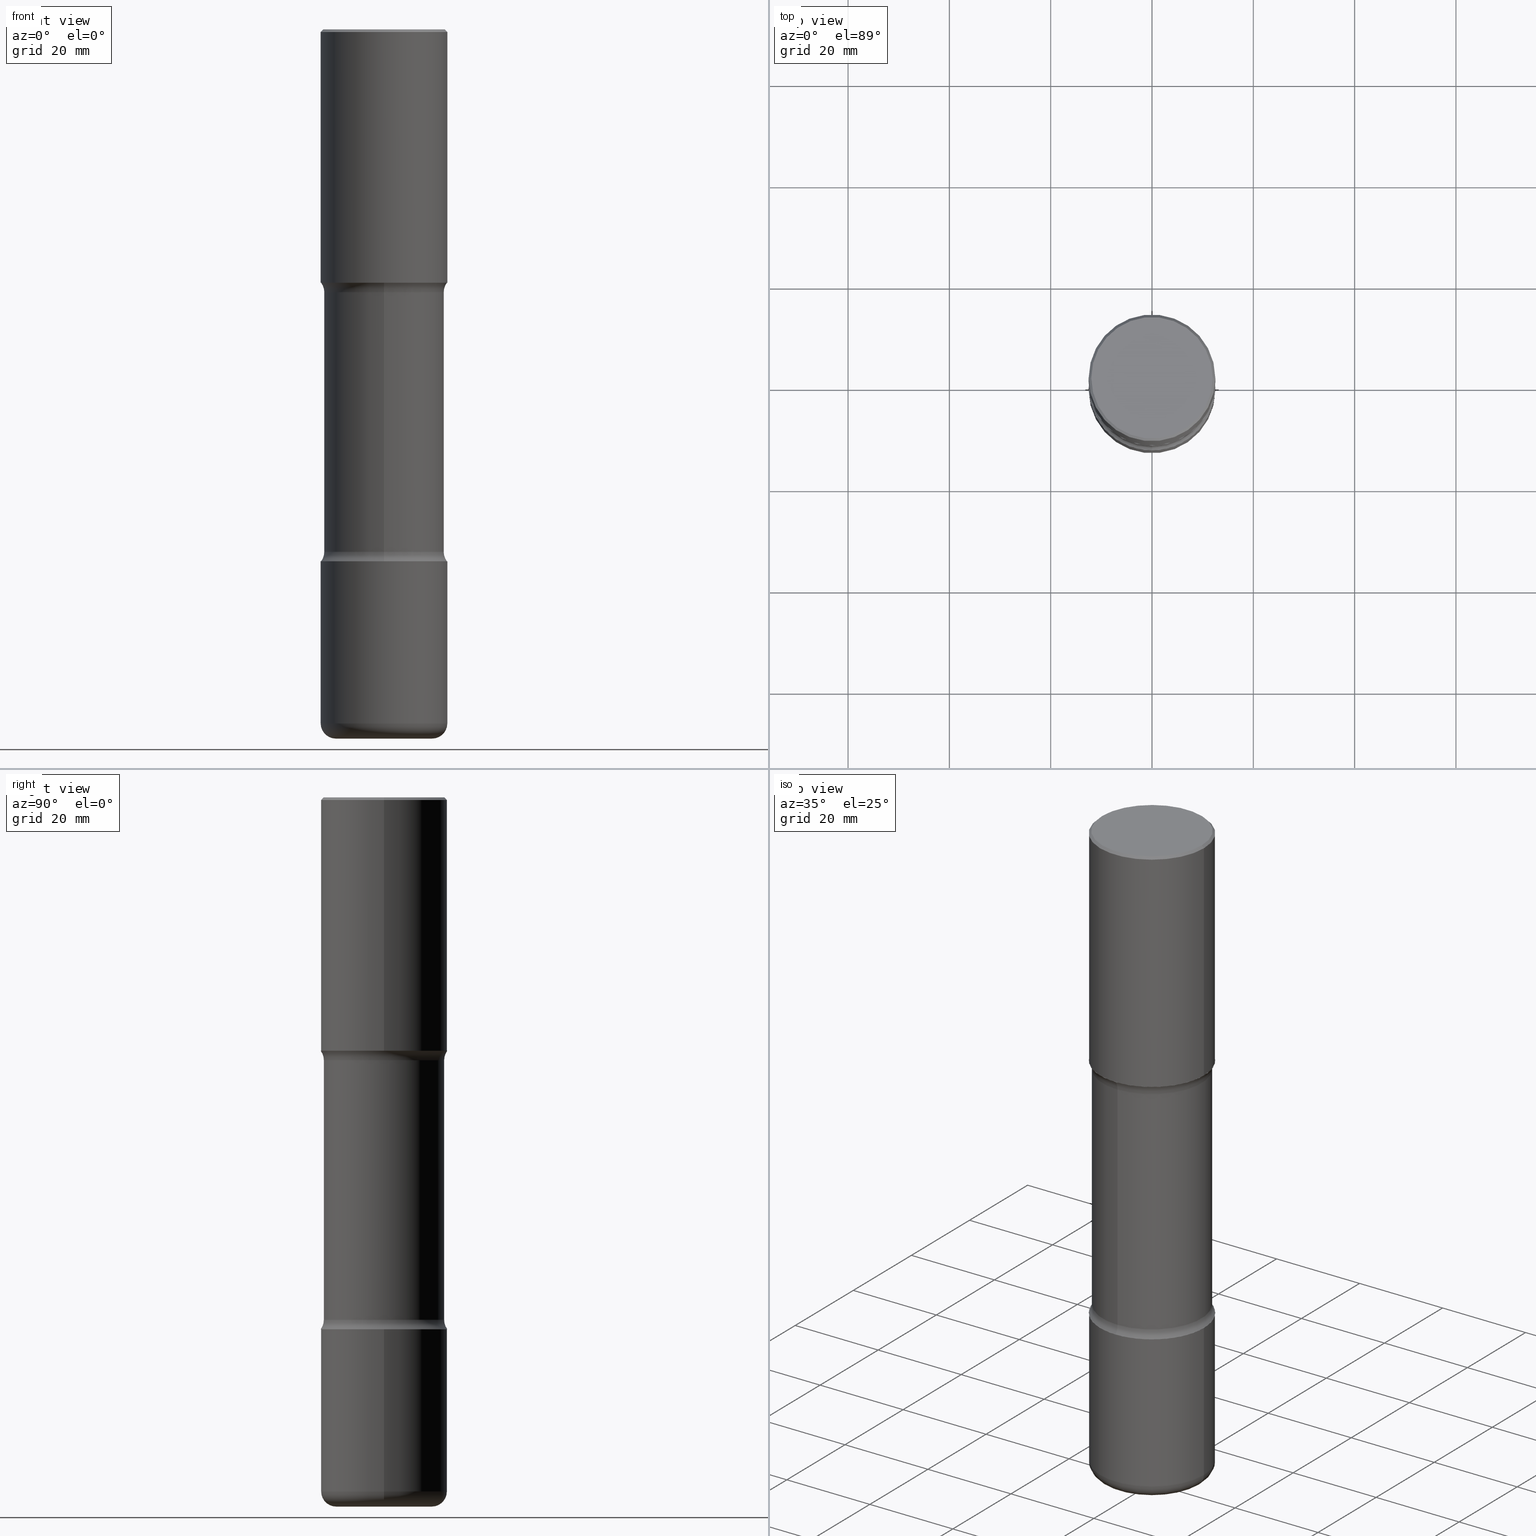
[diagram: canonical four-view strip — front | top / right | iso, engineering-drawing reading convention]
A machine part, canonical four-view strip (front | top / right | iso — engineering-drawing reading convention). The complete STEP part file that produces these views, byte-faithful:
ISO-10303-21;
HEADER;
FILE_DESCRIPTION (( 'STEP AP203' ),
    '1' );
FILE_NAME ('45004.STEP',
    '2024-03-02T04:33:52',
    ( '' ),
    ( '' ),
    'SwSTEP 2.0',
    'SolidWorks 2023',
    '' );
FILE_SCHEMA (( 'CONFIG_CONTROL_DESIGN' ));
ENDSEC;

DATA;
#1 = ORIENTED_EDGE ( 'NONE', *, *, #400, .F. ) ;
#2 = PERSON_AND_ORGANIZATION ( #340, #30 ) ;
#3 = CC_DESIGN_APPROVAL ( #273, ( #264 ) ) ;
#4 = COORDINATED_UNIVERSAL_TIME_OFFSET ( 5, 0, .BEHIND. ) ;
#5 = TOROIDAL_SURFACE ( 'NONE', #440, 0.5925000000000001377, 0.1250000000000001943 ) ;
#6 = EDGE_LOOP ( 'NONE', ( #391, #255, #208, #361 ) ) ;
#7 = PRODUCT_DEFINITION_FORMATION_WITH_SPECIFIED_SOURCE ( 'ANY', '', #63, .NOT_KNOWN. ) ;
#8 = EDGE_CURVE ( 'NONE', #421, #312, #518, .T. ) ;
#9 = PERSON_AND_ORGANIZATION ( #340, #30 ) ;
#10 = PERSON_AND_ORGANIZATION_ROLE ( 'classification_officer' ) ;
#11 = MECHANICAL_CONTEXT ( 'NONE', #149, 'mechanical' ) ;
#12 = DIRECTION ( 'NONE',  ( 1.000000000000000000, -6.982962677686265922E-15, 4.876176775795935793E-29 ) ) ;
#13 = EDGE_CURVE ( 'NONE', #345, #197, #22, .T. ) ;
#14 = CLOSED_SHELL ( 'NONE', ( #46, #87, #432, #551, #144, #323 ) ) ;
#15 = AXIS2_PLACEMENT_3D ( 'NONE', #277, #397, #453 ) ;
#16 = DIRECTION ( 'NONE',  ( 1.000000000000000000, -6.982962677686266711E-15, 4.876176775795935793E-29 ) ) ;
#17 = CARTESIAN_POINT ( 'NONE',  ( 3.436665081823346264E-15, 0.4921499999999935371, -1.968500000000001249 ) ) ;
#18 = CYLINDRICAL_SURFACE ( 'NONE', #441, 0.4921500000000002539 ) ;
#19 = ADVANCED_FACE ( 'NONE', ( #457 ), #338, .F. ) ;
#20 = ORIENTED_EDGE ( 'NONE', *, *, #299, .F. ) ;
#21 = CARTESIAN_POINT ( 'NONE',  ( -0.4921500000000000874, 3.366835455046433267E-15, -0.02000000000000010103 ) ) ;
#22 = CIRCLE ( 'NONE', #486, 0.1250000000000001665 ) ;
#23 = AXIS2_PLACEMENT_3D ( 'NONE', #549, #325, #70 ) ;
#24 = CARTESIAN_POINT ( 'NONE',  ( 1.347893496593123646E-28, -1.924434684343564878E-14, -5.511800000000000033 ) ) ;
#25 = CARTESIAN_POINT ( 'NONE',  ( 0.4921500000000001984, -1.786975064033309297E-14, -4.133799999999999919 ) ) ;
#26 = DIRECTION ( 'NONE',  ( 6.982962677686265133E-15, 1.000000000000000000, -3.392357681598433540E-15 ) ) ;
#27 = CARTESIAN_POINT ( 'NONE',  ( 9.921656725330168688E-29, -1.418024957656984198E-14, -4.059268949423747053 ) ) ;
#28 = CC_DESIGN_PERSON_AND_ORGANIZATION_ASSIGNMENT ( #346, #44, ( #63 ) ) ;
#29 = EDGE_LOOP ( 'NONE', ( #128, #465 ) ) ;
#30 = ORGANIZATION ( 'UNSPECIFIED', 'UNSPECIFIED', '' ) ;
#31 = DIRECTION ( 'NONE',  ( 6.982962677686265133E-15, 1.000000000000000000, -3.392357681598433540E-15 ) ) ;
#32 = VERTEX_POINT ( 'NONE', #199 ) ;
#33 = FACE_OUTER_BOUND ( 'NONE', #399, .T. ) ;
#34 = ADVANCED_FACE ( 'NONE', ( #545 ), #237, .F. ) ;
#35 = FACE_OUTER_BOUND ( 'NONE', #498, .T. ) ;
#36 = DIRECTION ( 'NONE',  ( 6.982962677686265133E-15, 1.000000000000000000, -3.392357681598433540E-15 ) ) ;
#37 = CIRCLE ( 'NONE', #443, 0.4675000000000001377 ) ;
#38 = CARTESIAN_POINT ( 'NONE',  ( -2.087702828670439639E-46, 2.980686340760894400E-32, 8.537024980200822558E-18 ) ) ;
#39 = AXIS2_PLACEMENT_3D ( 'NONE', #554, #425, #117 ) ;
#40 = PERSON_AND_ORGANIZATION ( #340, #30 ) ;
#41 = ORIENTED_EDGE ( 'NONE', *, *, #559, .T. ) ;
#42 = ADVANCED_FACE ( 'NONE', ( #319 ), #101, .F. ) ;
#43 = ORIENTED_EDGE ( 'NONE', *, *, #235, .T. ) ;
#44 = PERSON_AND_ORGANIZATION_ROLE ( 'design_owner' ) ;
#45 = PLANE ( 'NONE',  #395 ) ;
#46 = ADVANCED_FACE ( 'NONE', ( #483 ), #98, .T. ) ;
#47 = SECURITY_CLASSIFICATION_LEVEL ( 'unclassified' ) ;
#48 = CARTESIAN_POINT ( 'NONE',  ( 4.890937612370298557E-31, -6.982962677686327354E-17, -0.02000000000000010103 ) ) ;
#49 = FACE_OUTER_BOUND ( 'NONE', #478, .T. ) ;
#50 = AXIS2_PLACEMENT_3D ( 'NONE', #54, #393, #12 ) ;
#51 = CIRCLE ( 'NONE', #369, 0.4921500000000000874 ) ;
#52 = COORDINATED_UNIVERSAL_TIME_OFFSET ( 5, 0, .BEHIND. ) ;
#53 = EDGE_CURVE ( 'NONE', #344, #231, #558, .T. ) ;
#54 = CARTESIAN_POINT ( 'NONE',  ( 0.000000000000000000, 0.000000000000000000, 0.000000000000000000 ) ) ;
#55 = ORIENTED_EDGE ( 'NONE', *, *, #315, .F. ) ;
#56 = CYLINDRICAL_SURFACE ( 'NONE', #238, 0.4921500000000002539 ) ;
#57 = AXIS2_PLACEMENT_3D ( 'NONE', #280, #449, #362 ) ;
#58 = TOROIDAL_SURFACE ( 'NONE', #75, 0.5925000000000002487, 0.1250000000000001388 ) ;
#59 = DIRECTION ( 'NONE',  ( -2.445468806185136597E-29, 3.491481338843145583E-15, 1.000000000000000000 ) ) ;
#60 = CARTESIAN_POINT ( 'NONE',  ( -0.3740500000000001601, -1.617421779420761837E-14, -5.393699999999999939 ) ) ;
#61 = CARTESIAN_POINT ( 'NONE',  ( 4.813905344975440153E-29, -6.872981015512730130E-15, -1.968499999999999472 ) ) ;
#62 = CC_DESIGN_PERSON_AND_ORGANIZATION_ASSIGNMENT ( #9, #294, ( #264 ) ) ;
#63 = PRODUCT ( '45004', '45004', '', ( #11 ) ) ;
#64 = DIRECTION ( 'NONE',  ( 2.514686486086695474E-29, -3.392357681598433540E-15, -1.000000000000000000 ) ) ;
#65 = AXIS2_PLACEMENT_3D ( 'NONE', #360, #540, #309 ) ;
#66 = LOCAL_TIME ( 23, 33, 52.00000000000000000, #52 ) ;
#67 = DIRECTION ( 'NONE',  ( -2.445468806185136877E-29, 3.491481338843145188E-15, 1.000000000000000000 ) ) ;
#68 = ORIENTED_EDGE ( 'NONE', *, *, #245, .F. ) ;
#69 = CARTESIAN_POINT ( 'NONE',  ( 0.3740500000000000491, -2.185632403302419787E-14, -5.511800000000000033 ) ) ;
#70 = DIRECTION ( 'NONE',  ( 1.000000000000000000, -6.982962677686267499E-15, 0.000000000000000000 ) ) ;
#71 = DIMENSIONAL_EXPONENTS ( 1.000000000000000000, 0.000000000000000000, 0.000000000000000000, 0.000000000000000000, 0.000000000000000000, 0.000000000000000000, 0.000000000000000000 ) ;
#72 = DIRECTION ( 'NONE',  ( 2.445468806185136597E-29, -3.491481338843145583E-15, -1.000000000000000000 ) ) ;
#73 = LOCAL_TIME ( 23, 33, 52.00000000000000000, #4 ) ;
#74 = AXIS2_PLACEMENT_3D ( 'NONE', #454, #241, #36 ) ;
#75 = AXIS2_PLACEMENT_3D ( 'NONE', #485, #64, #31 ) ;
#76 = DIRECTION ( 'NONE',  ( 2.514686486086695474E-29, -3.392357681598433540E-15, -1.000000000000000000 ) ) ;
#77 = CC_DESIGN_PERSON_AND_ORGANIZATION_ASSIGNMENT ( #2, #174, ( #7 ) ) ;
#78 = CARTESIAN_POINT ( 'NONE',  ( 4.813905344975440153E-29, -6.872981015512730130E-15, -1.968499999999999472 ) ) ;
#79 = FACE_OUTER_BOUND ( 'NONE', #522, .T. ) ;
#80 = DIRECTION ( 'NONE',  ( 2.514686486086695474E-29, -3.392357681598433540E-15, -1.000000000000000000 ) ) ;
#81 = CARTESIAN_POINT ( 'NONE',  ( 1.010907895100811684E-28, -1.443308555850979562E-14, -4.133799999999999919 ) ) ;
#82 = ORIENTED_EDGE ( 'NONE', *, *, #165, .F. ) ;
#83 = APPROVAL_DATE_TIME ( #380, #512 ) ;
#84 = CIRCLE ( 'NONE', #247, 0.4674999999999999156 ) ;
#85 = VERTEX_POINT ( 'NONE', #206 ) ;
#86 = APPROVAL_STATUS ( 'not_yet_approved' ) ;
#87 = ADVANCED_FACE ( 'NONE', ( #374 ), #279, .T. ) ;
#88 = CARTESIAN_POINT ( 'NONE',  ( 4.813905344975440153E-29, -6.872981015512730130E-15, -1.968499999999999472 ) ) ;
#89 = ORIENTED_EDGE ( 'NONE', *, *, #400, .T. ) ;
#90 = DIRECTION ( 'NONE',  ( 6.982962677686265922E-15, 1.000000000000000000, -3.506115072082476004E-15 ) ) ;
#91 = APPROVAL_DATE_TIME ( #479, #475 ) ;
#92 = DIRECTION ( 'NONE',  ( -2.514686486086694914E-29, 3.392357681598433935E-15, 1.000000000000000000 ) ) ;
#93 = AXIS2_PLACEMENT_3D ( 'NONE', #24, #59, #198 ) ;
#94 = ORIENTED_EDGE ( 'NONE', *, *, #53, .F. ) ;
#95 = VECTOR ( 'NONE', #207, 39.37007874015748143 ) ;
#96 = EDGE_CURVE ( 'NONE', #344, #345, #37, .T. ) ;
#97 = CALENDAR_DATE ( 2024, 1, 3 ) ;
#98 = CYLINDRICAL_SURFACE ( 'NONE', #50, 0.4921500000000000874 ) ;
#99 = EDGE_LOOP ( 'NONE', ( #136, #476, #520, #433 ) ) ;
#100 = EDGE_CURVE ( 'NONE', #516, #354, #185, .T. ) ;
#101 = PLANE ( 'NONE',  #527 ) ;
#102 = DIRECTION ( 'NONE',  ( -2.445468806185136597E-29, 3.491481338843145583E-15, 1.000000000000000000 ) ) ;
#103 = AXIS2_PLACEMENT_3D ( 'NONE', #48, #437, #161 ) ;
#104 = AXIS2_PLACEMENT_3D ( 'NONE', #81, #417, #254 ) ;
#105 = FACE_OUTER_BOUND ( 'NONE', #109, .T. ) ;
#106 = DIRECTION ( 'NONE',  ( 1.000000000000000000, -6.982962677686266711E-15, 4.876176775795935793E-29 ) ) ;
#107 = ADVANCED_FACE ( 'NONE', ( #281 ), #386, .T. ) ;
#108 = PRODUCT_DEFINITION_SHAPE ( 'NONE', 'NONE',  #264 ) ;
#109 = EDGE_LOOP ( 'NONE', ( #553, #303, #110, #1 ) ) ;
#110 = ORIENTED_EDGE ( 'NONE', *, *, #451, .F. ) ;
#111 = CARTESIAN_POINT ( 'NONE',  ( 0.4921500000000000874, -3.446223716380123532E-15, -0.02000000000000010103 ) ) ;
#112 = ORIENTED_EDGE ( 'NONE', *, *, #220, .F. ) ;
#113 = FACE_OUTER_BOUND ( 'NONE', #29, .T. ) ;
#114 = DIRECTION ( 'NONE',  ( -2.445468806185136877E-29, 3.491481338843145188E-15, 1.000000000000000000 ) ) ;
#115 = AXIS2_PLACEMENT_3D ( 'NONE', #250, #370, #552 ) ;
#116 = EDGE_CURVE ( 'NONE', #345, #344, #418, .T. ) ;
#117 = DIRECTION ( 'NONE',  ( 1.000000000000000000, -6.982962677686264344E-15, 4.883557194083111780E-29 ) ) ;
#118 = CARTESIAN_POINT ( 'NONE',  ( -3.376394089603158865E-15, -0.4921500000000145758, -4.133799999999998143 ) ) ;
#119 = DIRECTION ( 'NONE',  ( -1.000000000000000000, 6.982962677686265922E-15, 0.000000000000000000 ) ) ;
#120 = DIRECTION ( 'NONE',  ( 2.514686486086695194E-29, -3.392357681598433935E-15, -1.000000000000000000 ) ) ;
#121 = CIRCLE ( 'NONE', #266, 0.4921500000000005870 ) ;
#122 = AXIS2_PLACEMENT_3D ( 'NONE', #150, #271, #318 ) ;
#123 = DIRECTION ( 'NONE',  ( -2.438088387897960049E-29, 3.491481338843145188E-15, 1.000000000000000000 ) ) ;
#124 = DIRECTION ( 'NONE',  ( -2.445468806185136597E-29, 3.491481338843145583E-15, 1.000000000000000000 ) ) ;
#125 = DIRECTION ( 'NONE',  ( -2.445468806185136597E-29, 3.491481338843145583E-15, 1.000000000000000000 ) ) ;
#126 = CARTESIAN_POINT ( 'NONE',  ( 4.813905344975440153E-29, -6.872981015512730130E-15, -1.968499999999999472 ) ) ;
#127 = EDGE_LOOP ( 'NONE', ( #248, #260, #337, #535 ) ) ;
#128 = ORIENTED_EDGE ( 'NONE', *, *, #341, .T. ) ;
#129 = EDGE_CURVE ( 'NONE', #493, #435, #139, .T. ) ;
#130 = DIRECTION ( 'NONE',  ( 0.000000000000000000, 0.000000000000000000, 1.000000000000000000 ) ) ;
#131 = APPROVAL_PERSON_ORGANIZATION ( #262, #273, #183 ) ;
#132 = ORIENTED_EDGE ( 'NONE', *, *, #355, .F. ) ;
#133 = PERSON_AND_ORGANIZATION ( #340, #30 ) ;
#134 = DATE_AND_TIME ( #383, #140 ) ;
#135 = DIRECTION ( 'NONE',  ( -2.445468806185136877E-29, 3.491481338843145188E-15, 1.000000000000000000 ) ) ;
#136 = ORIENTED_EDGE ( 'NONE', *, *, #327, .F. ) ;
#137 = APPLICATION_PROTOCOL_DEFINITION ( 'international standard', 'config_control_design', 1994, #149 ) ;
#138 = DIRECTION ( 'NONE',  ( -2.445468806185136597E-29, 3.491481338843145583E-15, 1.000000000000000000 ) ) ;
#139 = CIRCLE ( 'NONE', #452, 0.1180999999999999689 ) ;
#140 = LOCAL_TIME ( 23, 33, 52.00000000000000000, #216 ) ;
#141 = ORIENTED_EDGE ( 'NONE', *, *, #165, .T. ) ;
#142 = FACE_OUTER_BOUND ( 'NONE', #6, .T. ) ;
#143 = EDGE_LOOP ( 'NONE', ( #342, #146, #494, #209 ) ) ;
#144 = ADVANCED_FACE ( 'NONE', ( #371 ), #365, .T. ) ;
#145 = DIRECTION ( 'NONE',  ( 6.982962677686266711E-15, 1.000000000000000000, -3.330506545156064679E-15 ) ) ;
#146 = ORIENTED_EDGE ( 'NONE', *, *, #532, .F. ) ;
#147 = AXIS2_PLACEMENT_3D ( 'NONE', #531, #226, #186 ) ;
#148 = LOCAL_TIME ( 23, 33, 52.00000000000000000, #474 ) ;
#149 = APPLICATION_CONTEXT ( 'configuration controlled 3d designs of mechanical parts and assemblies' ) ;
#150 = CARTESIAN_POINT ( 'NONE',  ( 1.010907895100811684E-28, -1.443308555850979562E-14, -4.133799999999999919 ) ) ;
#151 = DIRECTION ( 'NONE',  ( 1.000000000000000000, -6.982962677686264344E-15, 0.000000000000000000 ) ) ;
#152 = CARTESIAN_POINT ( 'NONE',  ( -4.064845063679533496E-15, -0.5925000000000143485, -4.059268949423744388 ) ) ;
#153 = CC_DESIGN_DATE_AND_TIME_ASSIGNMENT ( #482, #302, ( #264 ) ) ;
#154 = FACE_OUTER_BOUND ( 'NONE', #127, .T. ) ;
#155 = VERTEX_POINT ( 'NONE', #414 ) ;
#156 = DIRECTION ( 'NONE',  ( -2.445468806185136597E-29, 3.491481338843145583E-15, 1.000000000000000000 ) ) ;
#157 = DIRECTION ( 'NONE',  ( 6.860497997771528407E-15, 1.000000000000000000, 0.000000000000000000 ) ) ;
#158 = DIRECTION ( 'NONE',  ( -2.445468806185136597E-29, 3.491481338843145583E-15, 1.000000000000000000 ) ) ;
#159 = LINE ( 'NONE', #324, #419 ) ;
#160 = ORIENTED_EDGE ( 'NONE', *, *, #299, .T. ) ;
#161 = DIRECTION ( 'NONE',  ( 1.000000000000000000, -6.982962677686265922E-15, 0.000000000000000000 ) ) ;
#162 = ORIENTED_EDGE ( 'NONE', *, *, #327, .T. ) ;
#163 = CARTESIAN_POINT ( 'NONE',  ( 4.890937612370298557E-31, -6.982962677686327354E-17, -0.02000000000000010103 ) ) ;
#164 = DIRECTION ( 'NONE',  ( 1.000000000000000000, -6.982962677686267499E-15, 0.000000000000000000 ) ) ;
#165 = EDGE_CURVE ( 'NONE', #415, #516, #529, .T. ) ;
#166 = DIRECTION ( 'NONE',  ( 2.514686486086695474E-29, -3.392357681598433540E-15, -1.000000000000000000 ) ) ;
#167 = ORIENTED_EDGE ( 'NONE', *, *, #382, .F. ) ;
#168 = AXIS2_PLACEMENT_3D ( 'NONE', #234, #196, #544 ) ;
#169 = CIRCLE ( 'NONE', #104, 0.4921500000000001984 ) ;
#170 =( LENGTH_UNIT ( ) NAMED_UNIT ( * ) SI_UNIT ( $, .METRE. ) );
#171 = ORIENTED_EDGE ( 'NONE', *, *, #222, .T. ) ;
#172 = MANIFOLD_SOLID_BREP ( 'Body-Move/Copy2[1]', #14 ) ;
#173 = DIRECTION ( 'NONE',  ( 6.982962677686265922E-15, 1.000000000000000000, -2.337410048054984397E-15 ) ) ;
#174 = PERSON_AND_ORGANIZATION_ROLE ( 'design_supplier' ) ;
#175 = ORIENTED_EDGE ( 'NONE', *, *, #347, .T. ) ;
#176 = CLOSED_SHELL ( 'NONE', ( #205, #34, #19, #389, #42, #179, #252, #502 ) ) ;
#177 = DATE_TIME_ROLE ( 'classification_date' ) ;
#178 = ORIENTED_EDGE ( 'NONE', *, *, #347, .F. ) ;
#179 = ADVANCED_FACE ( 'NONE', ( #229 ), #45, .F. ) ;
#180 = CALENDAR_DATE ( 2024, 1, 3 ) ;
#181 = EDGE_LOOP ( 'NONE', ( #385, #160, #233, #490 ) ) ;
#182 = EDGE_LOOP ( 'NONE', ( #178, #381, #473, #20 ) ) ;
#183 = APPROVAL_ROLE ( '' ) ;
#184 = DIRECTION ( 'NONE',  ( -1.000000000000000000, 6.982962677686265922E-15, -4.883557194083112340E-29 ) ) ;
#185 = CIRCLE ( 'NONE', #103, 0.4921500000000000874 ) ;
#186 = DIRECTION ( 'NONE',  ( -1.000000000000000000, 6.982962677686265922E-15, -4.876176775795935793E-29 ) ) ;
#187 = DIRECTION ( 'NONE',  ( -2.445468806185136877E-29, 3.491481338843145188E-15, 1.000000000000000000 ) ) ;
#188 = CYLINDRICAL_SURFACE ( 'NONE', #57, 0.4675000000000000266 ) ;
#189 = CARTESIAN_POINT ( 'NONE',  ( -0.4921500000000002539, -1.313560815387070066E-14, -4.133799999999999919 ) ) ;
#190 = CARTESIAN_POINT ( 'NONE',  ( -3.291838451780624866E-15, -0.4675000000000141265, -4.059268949423745276 ) ) ;
#191 = ORIENTED_EDGE ( 'NONE', *, *, #222, .F. ) ;
#192 = LINE ( 'NONE', #311, #349 ) ;
#193 = VECTOR ( 'NONE', #114, 39.37007874015748143 ) ;
#194 = AXIS2_PLACEMENT_3D ( 'NONE', #239, #236, #145 ) ;
#195 = ADVANCED_FACE ( 'NONE', ( #49 ), #496, .F. ) ;
#196 = DIRECTION ( 'NONE',  ( -2.445468806185136597E-29, 3.491481338843145583E-15, 1.000000000000000000 ) ) ;
#197 = VERTEX_POINT ( 'NONE', #445 ) ;
#198 = DIRECTION ( 'NONE',  ( 1.000000000000000000, -6.982962677686263555E-15, 0.000000000000000000 ) ) ;
#199 = CARTESIAN_POINT ( 'NONE',  ( 3.436665081823398723E-15, 0.4921499999999857100, -4.133800000000001695 ) ) ;
#200 = DIRECTION ( 'NONE',  ( -2.445468806185136597E-29, 3.491481338843145583E-15, 1.000000000000000000 ) ) ;
#201 = CARTESIAN_POINT ( 'NONE',  ( 4.890937612370298557E-31, -6.982962677686327354E-17, -0.02000000000000010103 ) ) ;
#202 = CC_DESIGN_APPROVAL ( #512, ( #7 ) ) ;
#203 = VERTEX_POINT ( 'NONE', #189 ) ;
#204 = CARTESIAN_POINT ( 'NONE',  ( 0.4921500000000003094, -1.030964609733602906E-14, -1.968499999999999472 ) ) ;
#205 = ADVANCED_FACE ( 'NONE', ( #105 ), #188, .T. ) ;
#206 = CARTESIAN_POINT ( 'NONE',  ( 3.264535051818428216E-15, 0.4674999999999857048, -4.059268949423747941 ) ) ;
#207 = DIRECTION ( 'NONE',  ( -0.7071067811865466846, 2.468850131082247989E-15, -0.7071067811865483499 ) ) ;
#208 = ORIENTED_EDGE ( 'NONE', *, *, #53, .T. ) ;
#209 = ORIENTED_EDGE ( 'NONE', *, *, #451, .T. ) ;
#210 = DIRECTION ( 'NONE',  ( 1.000000000000000000, -6.982962677686264344E-15, 4.883557194083111780E-29 ) ) ;
#211 = CIRCLE ( 'NONE', #387, 0.4921500000000000874 ) ;
#212 = VECTOR ( 'NONE', #287, 39.37007874015748143 ) ;
#213 = VERTEX_POINT ( 'NONE', #542 ) ;
#214 = DIRECTION ( 'NONE',  ( 6.982962677686266711E-15, 1.000000000000000000, -3.506115072082477581E-15 ) ) ;
#215 = ADVANCED_FACE ( 'NONE', ( #154 ), #375, .T. ) ;
#216 = COORDINATED_UNIVERSAL_TIME_OFFSET ( 5, 0, .BEHIND. ) ;
#217 = ORIENTED_EDGE ( 'NONE', *, *, #328, .F. ) ;
#218 = LINE ( 'NONE', #477, #368 ) ;
#219 = CIRCLE ( 'NONE', #339, 0.4921500000000005870 ) ;
#220 = EDGE_CURVE ( 'NONE', #415, #431, #301, .T. ) ;
#221 = CARTESIAN_POINT ( 'NONE',  ( 0.000000000000000000, 0.000000000000000000, 0.000000000000000000 ) ) ;
#222 = EDGE_CURVE ( 'NONE', #431, #415, #285, .T. ) ;
#223 = FACE_OUTER_BOUND ( 'NONE', #143, .T. ) ;
#224 = ORIENTED_EDGE ( 'NONE', *, *, #461, .T. ) ;
#225 = AXIS2_PLACEMENT_3D ( 'NONE', #78, #125, #543 ) ;
#226 = DIRECTION ( 'NONE',  ( 2.438088387897960049E-29, -3.491481338843145188E-15, -1.000000000000000000 ) ) ;
#227 = DIRECTION ( 'NONE',  ( 2.514686486086695474E-29, -3.392357681598433540E-15, -1.000000000000000000 ) ) ;
#228 = LOCAL_TIME ( 23, 33, 52.00000000000000000, #390 ) ;
#229 = FACE_OUTER_BOUND ( 'NONE', #469, .T. ) ;
#230 = DIRECTION ( 'NONE',  ( -2.445468806185136597E-29, 3.491481338843145583E-15, 1.000000000000000000 ) ) ;
#231 = VERTEX_POINT ( 'NONE', #17 ) ;
#232 = ORIENTED_EDGE ( 'NONE', *, *, #355, .T. ) ;
#233 = ORIENTED_EDGE ( 'NONE', *, *, #315, .T. ) ;
#234 = CARTESIAN_POINT ( 'NONE',  ( 1.347893496593123646E-28, -1.924434684343564878E-14, -5.511800000000000033 ) ) ;
#235 = EDGE_CURVE ( 'NONE', #155, #203, #218, .T. ) ;
#236 = DIRECTION ( 'NONE',  ( 2.514686486086695474E-29, -3.392357681598433540E-15, -1.000000000000000000 ) ) ;
#237 = TOROIDAL_SURFACE ( 'NONE', #74, 0.5925000000000001377, 0.1250000000000001943 ) ;
#238 = AXIS2_PLACEMENT_3D ( 'NONE', #446, #398, #16 ) ;
#239 = CARTESIAN_POINT ( 'NONE',  ( 1.010907895100811684E-28, -1.443308555850979562E-14, -4.133799999999999919 ) ) ;
#240 = LENGTH_MEASURE_WITH_UNIT ( LENGTH_MEASURE( 0.02539999999999999897 ), #170 );
#241 = DIRECTION ( 'NONE',  ( 2.514686486086695474E-29, -3.392357681598433540E-15, -1.000000000000000000 ) ) ;
#242 = DIRECTION ( 'NONE',  ( 1.000000000000000000, -6.982962677686274599E-15, 0.000000000000000000 ) ) ;
#243 = ORIENTED_EDGE ( 'NONE', *, *, #116, .T. ) ;
#244 = CARTESIAN_POINT ( 'NONE',  ( 1.357431692883558381E-28, -1.910775444375243513E-14, -5.511800000000000033 ) ) ;
#245 = EDGE_CURVE ( 'NONE', #231, #197, #121, .T. ) ;
#246 = UNCERTAINTY_MEASURE_WITH_UNIT (LENGTH_MEASURE( 1.000000000000000082E-05 ), #442, 'distance_accuracy_value', 'NONE');
#247 = AXIS2_PLACEMENT_3D ( 'NONE', #27, #379, #214 ) ;
#248 = ORIENTED_EDGE ( 'NONE', *, *, #447, .F. ) ;
#249 = DIRECTION ( 'NONE',  ( 6.982962677686266711E-15, 1.000000000000000000, -3.506115072082477581E-15 ) ) ;
#250 = CARTESIAN_POINT ( 'NONE',  ( 1.347893496593123646E-28, -1.924434684343564878E-14, -5.511800000000000033 ) ) ;
#251 = DIRECTION ( 'NONE',  ( -6.982962677686265133E-15, -1.000000000000000000, 0.000000000000000000 ) ) ;
#252 = ADVANCED_FACE ( 'NONE', ( #223 ), #5, .F. ) ;
#253 = EDGE_CURVE ( 'NONE', #493, #213, #330, .T. ) ;
#254 = DIRECTION ( 'NONE',  ( 6.982962677686266711E-15, 1.000000000000000000, -3.330506545156064679E-15 ) ) ;
#255 = ORIENTED_EDGE ( 'NONE', *, *, #96, .F. ) ;
#256 = AXIS2_PLACEMENT_3D ( 'NONE', #272, #411, #26 ) ;
#257 = CIRCLE ( 'NONE', #377, 0.1180999999999999689 ) ;
#258 = ORIENTED_EDGE ( 'NONE', *, *, #559, .F. ) ;
#259 = PERSON_AND_ORGANIZATION ( #340, #30 ) ;
#260 = ORIENTED_EDGE ( 'NONE', *, *, #382, .T. ) ;
#261 = ORIENTED_EDGE ( 'NONE', *, *, #447, .T. ) ;
#262 = PERSON_AND_ORGANIZATION ( #340, #30 ) ;
#263 = CALENDAR_DATE ( 2024, 1, 3 ) ;
#264 = PRODUCT_DEFINITION ( 'UNKNOWN', '', #7, #555 ) ;
#265 = CARTESIAN_POINT ( 'NONE',  ( 0.4921500000000000874, -3.436665081823296565E-15, 2.399810400207970163E-29 ) ) ;
#266 = AXIS2_PLACEMENT_3D ( 'NONE', #480, #357, #491 ) ;
#267 = CIRCLE ( 'NONE', #194, 0.4921500000000001984 ) ;
#268 = CARTESIAN_POINT ( 'NONE',  ( -3.291838451780680876E-15, -0.4675000000000075207, -2.043031050576251229 ) ) ;
#269 = CIRCLE ( 'NONE', #122, 0.4921500000000001984 ) ;
#270 = ORIENTED_EDGE ( 'NONE', *, *, #220, .T. ) ;
#271 = DIRECTION ( 'NONE',  ( -2.445468806185136597E-29, 3.491481338843145583E-15, 1.000000000000000000 ) ) ;
#272 = CARTESIAN_POINT ( 'NONE',  ( 4.853095759895353255E-29, -7.338093387288914893E-15, -2.043031050576253449 ) ) ;
#273 = APPROVAL ( #86, 'UNSPECIFIED' ) ;
#274 = CARTESIAN_POINT ( 'NONE',  ( 0.4921500000000002539, -3.436665081823297749E-15, 2.399810400207971004E-29 ) ) ;
#275 = ORIENTED_EDGE ( 'NONE', *, *, #328, .T. ) ;
#276 = DIRECTION ( 'NONE',  ( 0.7071067811865466846, -7.319954787623252890E-15, -0.7071067811865483499 ) ) ;
#277 = CARTESIAN_POINT ( 'NONE',  ( 1.010907895100811684E-28, -1.443308555850979562E-14, -4.133799999999999919 ) ) ;
#278 = CARTESIAN_POINT ( 'NONE',  ( -4.064845063679584772E-15, -0.5925000000000075762, -2.043031050576251673 ) ) ;
#279 = TOROIDAL_SURFACE ( 'NONE', #428, 0.3740500000000001601, 0.1180999999999999966 ) ;
#280 = CARTESIAN_POINT ( 'NONE',  ( 1.357431692883558381E-28, -1.910775444375243513E-14, -5.511800000000000033 ) ) ;
#281 = FACE_OUTER_BOUND ( 'NONE', #484, .T. ) ;
#282 = DIRECTION ( 'NONE',  ( 1.000000000000000000, -6.982962677686265922E-15, 4.876176775795935793E-29 ) ) ;
#283 = DIRECTION ( 'NONE',  ( 6.982962677686265922E-15, 1.000000000000000000, -3.506115072082476004E-15 ) ) ;
#284 = DIRECTION ( 'NONE',  ( -2.445468806185136597E-29, 3.491481338843145583E-15, 1.000000000000000000 ) ) ;
#285 = CIRCLE ( 'NONE', #225, 0.4921500000000003094 ) ;
#286 = AXIS2_PLACEMENT_3D ( 'NONE', #38, #284, #332 ) ;
#287 = DIRECTION ( 'NONE',  ( 2.514686486086695194E-29, -3.392357681598433935E-15, -1.000000000000000000 ) ) ;
#288 = ORIENTED_EDGE ( 'NONE', *, *, #116, .F. ) ;
#289 = EDGE_CURVE ( 'NONE', #213, #493, #405, .T. ) ;
#290 = PLANE ( 'NONE',  #115 ) ;
#291 = ORIENTED_EDGE ( 'NONE', *, *, #372, .F. ) ;
#292 = APPROVAL_DATE_TIME ( #388, #273 ) ;
#293 = AXIS2_PLACEMENT_3D ( 'NONE', #201, #72, #119 ) ;
#294 = PERSON_AND_ORGANIZATION_ROLE ( 'creator' ) ;
#295 = ORIENTED_EDGE ( 'NONE', *, *, #532, .T. ) ;
#296 = APPROVAL_STATUS ( 'not_yet_approved' ) ;
#297 = EDGE_CURVE ( 'NONE', #32, #85, #556, .T. ) ;
#298 = VERTEX_POINT ( 'NONE', #25 ) ;
#299 = EDGE_CURVE ( 'NONE', #155, #435, #211, .T. ) ;
#300 = AXIS2_PLACEMENT_3D ( 'NONE', #316, #526, #472 ) ;
#301 = CIRCLE ( 'NONE', #468, 0.4921500000000003094 ) ;
#302 = DATE_TIME_ROLE ( 'creation_date' ) ;
#303 = ORIENTED_EDGE ( 'NONE', *, *, #507, .T. ) ;
#304 = ADVANCED_FACE ( 'NONE', ( #489 ), #18, .T. ) ;
#305 = CARTESIAN_POINT ( 'NONE',  ( 0.4721500000000000696, -3.342703923013975763E-15, 8.537024980224040028E-18 ) ) ;
#306 = ORIENTED_EDGE ( 'NONE', *, *, #461, .F. ) ;
#307 = SECURITY_CLASSIFICATION ( '', '', #47 ) ;
#308 = CLOSED_SHELL ( 'NONE', ( #366, #215, #107, #195, #409, #304 ) ) ;
#309 = DIRECTION ( 'NONE',  ( -6.982962677686265133E-15, -1.000000000000000000, 0.000000000000000000 ) ) ;
#310 = APPROVAL_PERSON_ORGANIZATION ( #133, #475, #343 ) ;
#311 = CARTESIAN_POINT ( 'NONE',  ( -0.4921500000000002539, 3.496936074043334869E-15, -2.420853904668952910E-29 ) ) ;
#312 = VERTEX_POINT ( 'NONE', #190 ) ;
#313 = CARTESIAN_POINT ( 'NONE',  ( 0.000000000000000000, 0.000000000000000000, 0.000000000000000000 ) ) ;
#314 = DIRECTION ( 'NONE',  ( 6.860497997771532351E-15, 1.000000000000000000, 0.000000000000000000 ) ) ;
#315 = EDGE_CURVE ( 'NONE', #435, #298, #352, .T. ) ;
#316 = CARTESIAN_POINT ( 'NONE',  ( 4.890937612370298557E-31, -6.982962677686327354E-17, -0.02000000000000010103 ) ) ;
#317 = ORIENTED_EDGE ( 'NONE', *, *, #507, .F. ) ;
#318 = DIRECTION ( 'NONE',  ( 1.000000000000000000, -6.982962677686267499E-15, 0.000000000000000000 ) ) ;
#319 = FACE_OUTER_BOUND ( 'NONE', #401, .T. ) ;
#320 = AXIS2_PLACEMENT_3D ( 'NONE', #466, #184, #251 ) ;
#321 = AXIS2_PLACEMENT_3D ( 'NONE', #501, #230, #439 ) ;
#322 = DIRECTION ( 'NONE',  ( 1.000000000000000000, -6.982962677686265922E-15, 4.876176775795935793E-29 ) ) ;
#323 = ADVANCED_FACE ( 'NONE', ( #113 ), #534, .F. ) ;
#324 = CARTESIAN_POINT ( 'NONE',  ( -3.207282813958054974E-15, -0.4675000000000191225, -5.511799999999999145 ) ) ;
#325 = DIRECTION ( 'NONE',  ( -2.445468806185136597E-29, 3.491481338843145583E-15, 1.000000000000000000 ) ) ;
#326 = DIRECTION ( 'NONE',  ( 6.982962677686265922E-15, 1.000000000000000000, -3.330506545156062313E-15 ) ) ;
#327 = EDGE_CURVE ( 'NONE', #421, #32, #267, .T. ) ;
#328 = EDGE_CURVE ( 'NONE', #505, #396, #407, .T. ) ;
#329 = CARTESIAN_POINT ( 'NONE',  ( 4.851450528362542528E-29, -7.340449452484660690E-15, -2.043031050576253005 ) ) ;
#330 = CIRCLE ( 'NONE', #93, 0.3740500000000000491 ) ;
#331 = AXIS2_PLACEMENT_3D ( 'NONE', #244, #508, #173 ) ;
#332 = DIRECTION ( 'NONE',  ( 1.000000000000000000, -6.982962677686266711E-15, 4.876006802227158492E-29 ) ) ;
#333 = DIRECTION ( 'NONE',  ( 6.982962677686265922E-15, 1.000000000000000000, -3.392357681598433935E-15 ) ) ;
#334 = ORIENTED_EDGE ( 'NONE', *, *, #289, .F. ) ;
#335 = FACE_OUTER_BOUND ( 'NONE', #182, .T. ) ;
#336 = PERSON_AND_ORGANIZATION_ROLE ( 'creator' ) ;
#337 = ORIENTED_EDGE ( 'NONE', *, *, #100, .T. ) ;
#338 = TOROIDAL_SURFACE ( 'NONE', #256, 0.5925000000000002487, 0.1250000000000001388 ) ;
#339 = AXIS2_PLACEMENT_3D ( 'NONE', #373, #166, #326 ) ;
#340 = PERSON ( 'UNSPECIFIED', 'UNSPECIFIED', 'UNSPECIFIED', ('UNSPECIFIED'), ('UNSPECIFIED'), ('UNSPECIFIED') ) ;
#341 = EDGE_CURVE ( 'NONE', #298, #203, #269, .T. ) ;
#342 = ORIENTED_EDGE ( 'NONE', *, *, #8, .F. ) ;
#343 = APPROVAL_ROLE ( '' ) ;
#344 = VERTEX_POINT ( 'NONE', #450 ) ;
#345 = VERTEX_POINT ( 'NONE', #268 ) ;
#346 = PERSON_AND_ORGANIZATION ( #340, #30 ) ;
#347 = EDGE_CURVE ( 'NONE', #213, #155, #257, .T. ) ;
#348 = ORIENTED_EDGE ( 'NONE', *, *, #537, .F. ) ;
#349 = VECTOR ( 'NONE', #187, 39.37007874015748143 ) ;
#350 = DIRECTION ( 'NONE',  ( -1.000000000000000000, 7.105427357601006592E-15, 0.000000000000000000 ) ) ;
#351 = MANIFOLD_SOLID_BREP ( 'Body-Move/Copy2[2]', #308 ) ;
#352 = LINE ( 'NONE', #265, #460 ) ;
#353 = ORIENTED_EDGE ( 'NONE', *, *, #372, .T. ) ;
#354 = VERTEX_POINT ( 'NONE', #21 ) ;
#355 = EDGE_CURVE ( 'NONE', #435, #155, #519, .T. ) ;
#356 = AXIS2_PLACEMENT_3D ( 'NONE', #152, #504, #314 ) ;
#357 = DIRECTION ( 'NONE',  ( 2.514686486086695474E-29, -3.392357681598433540E-15, -1.000000000000000000 ) ) ;
#358 = CARTESIAN_POINT ( 'NONE',  ( 1.319012509992077146E-28, -1.883200289731827623E-14, -5.393699999999999939 ) ) ;
#359 = AXIS2_PLACEMENT_3D ( 'NONE', #410, #156, #538 ) ;
#360 = CARTESIAN_POINT ( 'NONE',  ( 4.137405386529213527E-15, 0.5924999999999859268, -4.059268949423748829 ) ) ;
#361 = ORIENTED_EDGE ( 'NONE', *, *, #245, .T. ) ;
#362 = DIRECTION ( 'NONE',  ( 6.982962677686265922E-15, 1.000000000000000000, -2.337410048054984397E-15 ) ) ;
#363 = CARTESIAN_POINT ( 'NONE',  ( 9.926815591731683841E-29, -1.417286178625843291E-14, -4.059268949423747053 ) ) ;
#364 = PRODUCT_RELATED_PRODUCT_CATEGORY ( 'detail', '', ( #63 ) ) ;
#365 = CYLINDRICAL_SURFACE ( 'NONE', #547, 0.4921500000000000874 ) ;
#366 = ADVANCED_FACE ( 'NONE', ( #402 ), #56, .T. ) ;
#367 = CYLINDRICAL_SURFACE ( 'NONE', #331, 0.4675000000000000266 ) ;
#368 = VECTOR ( 'NONE', #135, 39.37007874015748143 ) ;
#369 = AXIS2_PLACEMENT_3D ( 'NONE', #163, #200, #456 ) ;
#370 = DIRECTION ( 'NONE',  ( 2.438088387897960049E-29, -3.491481338843145188E-15, -1.000000000000000000 ) ) ;
#371 = FACE_OUTER_BOUND ( 'NONE', #181, .T. ) ;
#372 = EDGE_CURVE ( 'NONE', #431, #354, #192, .T. ) ;
#373 = CARTESIAN_POINT ( 'NONE',  ( 4.664028302684594941E-29, -7.087613470544705473E-15, -1.968499999999999472 ) ) ;
#374 = FACE_OUTER_BOUND ( 'NONE', #463, .T. ) ;
#375 = CONICAL_SURFACE ( 'NONE', #300, 0.4921500000000000874, 0.7853981633974471688 ) ;
#376 = ORIENTED_EDGE ( 'NONE', *, *, #253, .F. ) ;
#377 = AXIS2_PLACEMENT_3D ( 'NONE', #60, #492, #350 ) ;
#378 = ORIENTED_EDGE ( 'NONE', *, *, #13, .T. ) ;
#379 = DIRECTION ( 'NONE',  ( 2.514686486086695474E-29, -3.392357681598433540E-15, -1.000000000000000000 ) ) ;
#380 = DATE_AND_TIME ( #180, #73 ) ;
#381 = ORIENTED_EDGE ( 'NONE', *, *, #289, .T. ) ;
#382 = EDGE_CURVE ( 'NONE', #396, #516, #533, .T. ) ;
#383 = CALENDAR_DATE ( 2024, 1, 3 ) ;
#384 = CARTESIAN_POINT ( 'NONE',  ( 1.010907895100811684E-28, -1.443308555850979562E-14, -4.133799999999999919 ) ) ;
#385 = ORIENTED_EDGE ( 'NONE', *, *, #235, .F. ) ;
#386 = CONICAL_SURFACE ( 'NONE', #293, 0.4921500000000000874, 0.7853981633974471688 ) ;
#387 = AXIS2_PLACEMENT_3D ( 'NONE', #358, #102, #151 ) ;
#388 = DATE_AND_TIME ( #97, #228 ) ;
#389 = ADVANCED_FACE ( 'NONE', ( #142 ), #58, .F. ) ;
#390 = COORDINATED_UNIVERSAL_TIME_OFFSET ( 5, 0, .BEHIND. ) ;
#391 = ORIENTED_EDGE ( 'NONE', *, *, #13, .F. ) ;
#392 = DIRECTION ( 'NONE',  ( 1.000000000000000000, 0.000000000000000000, 0.000000000000000000 ) ) ;
#393 = DIRECTION ( 'NONE',  ( -2.445468806185136597E-29, 3.491481338843145583E-15, 1.000000000000000000 ) ) ;
#394 = DIRECTION ( 'NONE',  ( -6.982962677686265922E-15, -1.000000000000000000, 3.392357681598433935E-15 ) ) ;
#395 = AXIS2_PLACEMENT_3D ( 'NONE', #384, #92, #394 ) ;
#396 = VERTEX_POINT ( 'NONE', #305 ) ;
#397 = DIRECTION ( 'NONE',  ( 2.438088387897960049E-29, -3.491481338843145188E-15, -1.000000000000000000 ) ) ;
#398 = DIRECTION ( 'NONE',  ( -2.445468806185136597E-29, 3.491481338843145583E-15, 1.000000000000000000 ) ) ;
#399 = EDGE_LOOP ( 'NONE', ( #317, #243, #89, #348 ) ) ;
#400 = EDGE_CURVE ( 'NONE', #344, #85, #423, .T. ) ;
#401 = EDGE_LOOP ( 'NONE', ( #68, #258 ) ) ;
#402 = FACE_OUTER_BOUND ( 'NONE', #408, .T. ) ;
#403 = EDGE_LOOP ( 'NONE', ( #232, #43, #539, #55 ) ) ;
#404 = APPLICATION_CONTEXT ( 'configuration controlled 3d designs of mechanical parts and assemblies' ) ;
#405 = CIRCLE ( 'NONE', #168, 0.3740500000000000491 ) ;
#406 = DIRECTION ( 'NONE',  ( 6.982962677686265133E-15, 1.000000000000000000, -3.392357681598433540E-15 ) ) ;
#407 = CIRCLE ( 'NONE', #359, 0.4721500000000000696 ) ;
#408 = EDGE_LOOP ( 'NONE', ( #270, #353, #429, #82 ) ) ;
#409 = ADVANCED_FACE ( 'NONE', ( #79 ), #509, .F. ) ;
#410 = CARTESIAN_POINT ( 'NONE',  ( -2.087702828670439639E-46, 2.980686340760894400E-32, 8.537024980200822558E-18 ) ) ;
#411 = DIRECTION ( 'NONE',  ( 2.514686486086695474E-29, -3.392357681598433540E-15, -1.000000000000000000 ) ) ;
#412 = CARTESIAN_POINT ( 'NONE',  ( -0.4921500000000003650, 2.553075289854047247E-17, -1.968499999999999472 ) ) ;
#413 = DIRECTION ( 'NONE',  ( 1.000000000000000000, -6.860497997771530774E-15, 4.842012794319787643E-29 ) ) ;
#414 = CARTESIAN_POINT ( 'NONE',  ( -0.4921500000000000874, -1.533506682327494254E-14, -5.393699999999999939 ) ) ;
#415 = VERTEX_POINT ( 'NONE', #204 ) ;
#416 = CC_DESIGN_APPROVAL ( #475, ( #307 ) ) ;
#417 = DIRECTION ( 'NONE',  ( 2.514686486086695474E-29, -3.392357681598433540E-15, -1.000000000000000000 ) ) ;
#418 = CIRCLE ( 'NONE', #499, 0.4675000000000001377 ) ;
#419 = VECTOR ( 'NONE', #120, 39.37007874015748143 ) ;
#420 = CARTESIAN_POINT ( 'NONE',  ( 4.851450528362542528E-29, -7.340449452484660690E-15, -2.043031050576253005 ) ) ;
#421 = VERTEX_POINT ( 'NONE', #118 ) ;
#422 = ADVANCED_BREP_SHAPE_REPRESENTATION ( '45004', ( #172, #351, #541, #500 ), #536 ) ;
#423 = LINE ( 'NONE', #464, #212 ) ;
#424 = CC_DESIGN_DATE_AND_TIME_ASSIGNMENT ( #134, #177, ( #307 ) ) ;
#425 = DIRECTION ( 'NONE',  ( -2.445468806185136597E-29, 3.491481338843145583E-15, 1.000000000000000000 ) ) ;
#426 = CARTESIAN_POINT ( 'NONE',  ( -0.4921500000000000874, 3.366835455046433267E-15, -0.02000000000000010103 ) ) ;
#427 = CC_DESIGN_SECURITY_CLASSIFICATION ( #307, ( #7 ) ) ;
#428 = AXIS2_PLACEMENT_3D ( 'NONE', #511, #124, #210 ) ;
#429 = ORIENTED_EDGE ( 'NONE', *, *, #100, .F. ) ;
#430 = TOROIDAL_SURFACE ( 'NONE', #39, 0.3740500000000001601, 0.1180999999999999966 ) ;
#431 = VERTEX_POINT ( 'NONE', #412 ) ;
#432 = ADVANCED_FACE ( 'NONE', ( #35 ), #290, .T. ) ;
#433 = ORIENTED_EDGE ( 'NONE', *, *, #297, .F. ) ;
#434 =( NAMED_UNIT ( * ) PLANE_ANGLE_UNIT ( ) SI_UNIT ( $, .RADIAN. ) );
#435 = VERTEX_POINT ( 'NONE', #557 ) ;
#436 = CALENDAR_DATE ( 2024, 1, 3 ) ;
#437 = DIRECTION ( 'NONE',  ( -2.445468806185136597E-29, 3.491481338843145583E-15, 1.000000000000000000 ) ) ;
#438 = ORIENTED_EDGE ( 'NONE', *, *, #129, .F. ) ;
#439 = DIRECTION ( 'NONE',  ( 1.000000000000000000, -6.982962677686264344E-15, 0.000000000000000000 ) ) ;
#440 = AXIS2_PLACEMENT_3D ( 'NONE', #363, #227, #406 ) ;
#441 = AXIS2_PLACEMENT_3D ( 'NONE', #313, #497, #106 ) ;
#442 =( CONVERSION_BASED_UNIT ( 'INCH', #240 ) LENGTH_UNIT ( ) NAMED_UNIT ( #71 ) );
#443 = AXIS2_PLACEMENT_3D ( 'NONE', #329, #80, #90 ) ;
#444 = APPROVAL_PERSON_ORGANIZATION ( #40, #512, #521 ) ;
#445 = CARTESIAN_POINT ( 'NONE',  ( -3.376394089603216058E-15, -0.4921500000000076924, -1.968499999999997918 ) ) ;
#446 = CARTESIAN_POINT ( 'NONE',  ( 0.000000000000000000, 0.000000000000000000, 0.000000000000000000 ) ) ;
#447 = EDGE_CURVE ( 'NONE', #396, #505, #548, .T. ) ;
#448 = ORIENTED_EDGE ( 'NONE', *, *, #513, .T. ) ;
#449 = DIRECTION ( 'NONE',  ( 2.514686486086695474E-29, -3.392357681598433540E-15, -1.000000000000000000 ) ) ;
#450 = CARTESIAN_POINT ( 'NONE',  ( 3.264535051818378912E-15, 0.4674999999999928102, -2.043031050576254337 ) ) ;
#451 = EDGE_CURVE ( 'NONE', #85, #312, #84, .T. ) ;
#452 = AXIS2_PLACEMENT_3D ( 'NONE', #455, #458, #242 ) ;
#453 = DIRECTION ( 'NONE',  ( -1.000000000000000000, 6.982962677686265922E-15, -4.876176775795935793E-29 ) ) ;
#454 = CARTESIAN_POINT ( 'NONE',  ( 9.926815591731683841E-29, -1.417286178625843291E-14, -4.059268949423747053 ) ) ;
#455 = CARTESIAN_POINT ( 'NONE',  ( 0.3740500000000001601, -2.144398008690682532E-14, -5.393699999999999939 ) ) ;
#456 = DIRECTION ( 'NONE',  ( 1.000000000000000000, -6.982962677686265922E-15, 0.000000000000000000 ) ) ;
#457 = FACE_OUTER_BOUND ( 'NONE', #530, .T. ) ;
#458 = DIRECTION ( 'NONE',  ( -6.982962677686266711E-15, -1.000000000000000000, 3.491481338843145583E-15 ) ) ;
#459 = LINE ( 'NONE', #426, #95 ) ;
#460 = VECTOR ( 'NONE', #67, 39.37007874015748143 ) ;
#461 = EDGE_CURVE ( 'NONE', #354, #516, #51, .T. ) ;
#462 = CARTESIAN_POINT ( 'NONE',  ( 9.921656725330168688E-29, -1.418024957656984198E-14, -4.059268949423747053 ) ) ;
#463 = EDGE_LOOP ( 'NONE', ( #506, #175, #132, #438 ) ) ;
#464 = CARTESIAN_POINT ( 'NONE',  ( 3.264535051818465292E-15, 0.4674999999999808753, -5.511800000000000921 ) ) ;
#465 = ORIENTED_EDGE ( 'NONE', *, *, #495, .T. ) ;
#466 = CARTESIAN_POINT ( 'NONE',  ( 4.137405386529163040E-15, 0.5924999999999929212, -2.043031050576255225 ) ) ;
#467 = CC_DESIGN_PERSON_AND_ORGANIZATION_ASSIGNMENT ( #259, #336, ( #7 ) ) ;
#468 = AXIS2_PLACEMENT_3D ( 'NONE', #88, #138, #164 ) ;
#469 = EDGE_LOOP ( 'NONE', ( #295, #162 ) ) ;
#470 = AXIS2_PLACEMENT_3D ( 'NONE', #462, #76, #249 ) ;
#471 = PERSON_AND_ORGANIZATION ( #340, #30 ) ;
#472 = DIRECTION ( 'NONE',  ( -1.000000000000000000, 6.982962677686265922E-15, 0.000000000000000000 ) ) ;
#473 = ORIENTED_EDGE ( 'NONE', *, *, #129, .T. ) ;
#474 = COORDINATED_UNIVERSAL_TIME_OFFSET ( 5, 0, .BEHIND. ) ;
#475 = APPROVAL ( #296, 'UNSPECIFIED' ) ;
#476 = ORIENTED_EDGE ( 'NONE', *, *, #8, .T. ) ;
#477 = CARTESIAN_POINT ( 'NONE',  ( -0.4921500000000000874, 3.496936074043333686E-15, -2.420853904668952350E-29 ) ) ;
#478 = EDGE_LOOP ( 'NONE', ( #275, #261 ) ) ;
#479 = DATE_AND_TIME ( #263, #148 ) ;
#480 = CARTESIAN_POINT ( 'NONE',  ( 4.664028302684594941E-29, -7.087613470544705473E-15, -1.968499999999999472 ) ) ;
#481 = VECTOR ( 'NONE', #276, 39.37007874015748143 ) ;
#482 = DATE_AND_TIME ( #436, #66 ) ;
#483 = FACE_OUTER_BOUND ( 'NONE', #403, .T. ) ;
#484 = EDGE_LOOP ( 'NONE', ( #167, #217, #448, #224 ) ) ;
#485 = CARTESIAN_POINT ( 'NONE',  ( 4.853095759895353255E-29, -7.338093387288914893E-15, -2.043031050576253449 ) ) ;
#486 = AXIS2_PLACEMENT_3D ( 'NONE', #278, #413, #157 ) ;
#487 = EDGE_LOOP ( 'NONE', ( #291, #171, #141, #306 ) ) ;
#488 = CIRCLE ( 'NONE', #23, 0.4921500000000001984 ) ;
#489 = FACE_OUTER_BOUND ( 'NONE', #487, .T. ) ;
#490 = ORIENTED_EDGE ( 'NONE', *, *, #495, .F. ) ;
#491 = DIRECTION ( 'NONE',  ( 6.982962677686265922E-15, 1.000000000000000000, -3.330506545156062313E-15 ) ) ;
#492 = DIRECTION ( 'NONE',  ( 7.105427357601001859E-15, 1.000000000000000000, -3.491481338843145583E-15 ) ) ;
#493 = VERTEX_POINT ( 'NONE', #69 ) ;
#494 = ORIENTED_EDGE ( 'NONE', *, *, #297, .T. ) ;
#495 = EDGE_CURVE ( 'NONE', #203, #298, #488, .T. ) ;
#496 = PLANE ( 'NONE',  #147 ) ;
#497 = DIRECTION ( 'NONE',  ( -2.445468806185136597E-29, 3.491481338843145583E-15, 1.000000000000000000 ) ) ;
#498 = EDGE_LOOP ( 'NONE', ( #376, #334 ) ) ;
#499 = AXIS2_PLACEMENT_3D ( 'NONE', #420, #550, #283 ) ;
#500 = AXIS2_PLACEMENT_3D ( 'NONE', #221, #130, #392 ) ;
#501 = CARTESIAN_POINT ( 'NONE',  ( 1.319012509992077146E-28, -1.883200289731827623E-14, -5.393699999999999939 ) ) ;
#502 = ADVANCED_FACE ( 'NONE', ( #33 ), #367, .T. ) ;
#503 = CARTESIAN_POINT ( 'NONE',  ( 0.4921500000000000874, -3.446223716380123532E-15, -0.02000000000000010103 ) ) ;
#504 = DIRECTION ( 'NONE',  ( 1.000000000000000000, -6.860497997771530774E-15, 4.842012794319787643E-29 ) ) ;
#505 = VERTEX_POINT ( 'NONE', #560 ) ;
#506 = ORIENTED_EDGE ( 'NONE', *, *, #253, .T. ) ;
#507 = EDGE_CURVE ( 'NONE', #345, #312, #159, .T. ) ;
#508 = DIRECTION ( 'NONE',  ( 2.514686486086695474E-29, -3.392357681598433540E-15, -1.000000000000000000 ) ) ;
#509 = PLANE ( 'NONE',  #510 ) ;
#510 = AXIS2_PLACEMENT_3D ( 'NONE', #126, #123, #282 ) ;
#511 = CARTESIAN_POINT ( 'NONE',  ( 1.319012509992077146E-28, -1.883200289731827623E-14, -5.393699999999999939 ) ) ;
#512 = APPROVAL ( #514, 'UNSPECIFIED' ) ;
#513 = EDGE_CURVE ( 'NONE', #505, #354, #459, .T. ) ;
#514 = APPROVAL_STATUS ( 'not_yet_approved' ) ;
#515 = DIRECTION ( 'NONE',  ( 2.514686486086694914E-29, -3.392357681598433935E-15, -1.000000000000000000 ) ) ;
#516 = VERTEX_POINT ( 'NONE', #503 ) ;
#517 =( NAMED_UNIT ( * ) SI_UNIT ( $, .STERADIAN. ) SOLID_ANGLE_UNIT ( ) );
#518 = CIRCLE ( 'NONE', #356, 0.1250000000000001665 ) ;
#519 = CIRCLE ( 'NONE', #321, 0.4921500000000000874 ) ;
#520 = ORIENTED_EDGE ( 'NONE', *, *, #537, .T. ) ;
#521 = APPROVAL_ROLE ( '' ) ;
#522 = EDGE_LOOP ( 'NONE', ( #112, #191 ) ) ;
#523 = SHAPE_DEFINITION_REPRESENTATION ( #108, #422 ) ;
#524 = CC_DESIGN_PERSON_AND_ORGANIZATION_ASSIGNMENT ( #471, #10, ( #307 ) ) ;
#525 = APPLICATION_PROTOCOL_DEFINITION ( 'international standard', 'config_control_design', 1994, #404 ) ;
#526 = DIRECTION ( 'NONE',  ( 2.445468806185136597E-29, -3.491481338843145583E-15, -1.000000000000000000 ) ) ;
#527 = AXIS2_PLACEMENT_3D ( 'NONE', #61, #515, #333 ) ;
#528 = CIRCLE ( 'NONE', #470, 0.4674999999999999156 ) ;
#529 = LINE ( 'NONE', #274, #193 ) ;
#530 = EDGE_LOOP ( 'NONE', ( #288, #378, #41, #94 ) ) ;
#531 = CARTESIAN_POINT ( 'NONE',  ( 3.297005828269570364E-15, 0.4721500000000000696, -1.644234401644690869E-15 ) ) ;
#532 = EDGE_CURVE ( 'NONE', #32, #421, #169, .T. ) ;
#533 = LINE ( 'NONE', #111, #481 ) ;
#534 = PLANE ( 'NONE',  #15 ) ;
#535 = ORIENTED_EDGE ( 'NONE', *, *, #513, .F. ) ;
#536 =( GEOMETRIC_REPRESENTATION_CONTEXT ( 3 ) GLOBAL_UNCERTAINTY_ASSIGNED_CONTEXT ( ( #246 ) ) GLOBAL_UNIT_ASSIGNED_CONTEXT ( ( #442, #434, #517 ) ) REPRESENTATION_CONTEXT ( 'NONE', 'WORKASPACE' ) );
#537 = EDGE_CURVE ( 'NONE', #312, #85, #528, .T. ) ;
#538 = DIRECTION ( 'NONE',  ( 1.000000000000000000, -6.982962677686266711E-15, 4.876006802227158492E-29 ) ) ;
#539 = ORIENTED_EDGE ( 'NONE', *, *, #341, .F. ) ;
#540 = DIRECTION ( 'NONE',  ( -1.000000000000000000, 6.982962677686265922E-15, -4.883557194083112340E-29 ) ) ;
#541 = MANIFOLD_SOLID_BREP ( 'Body-Move/Copy2[4]', #176 ) ;
#542 = CARTESIAN_POINT ( 'NONE',  ( -0.3740500000000000491, -1.596081428179996673E-14, -5.511800000000000033 ) ) ;
#543 = DIRECTION ( 'NONE',  ( 1.000000000000000000, -6.982962677686267499E-15, 0.000000000000000000 ) ) ;
#544 = DIRECTION ( 'NONE',  ( 1.000000000000000000, -6.982962677686263555E-15, 0.000000000000000000 ) ) ;
#545 = FACE_OUTER_BOUND ( 'NONE', #99, .T. ) ;
#546 = CARTESIAN_POINT ( 'NONE',  ( 0.000000000000000000, 0.000000000000000000, 0.000000000000000000 ) ) ;
#547 = AXIS2_PLACEMENT_3D ( 'NONE', #546, #158, #322 ) ;
#548 = CIRCLE ( 'NONE', #286, 0.4721500000000000696 ) ;
#549 = CARTESIAN_POINT ( 'NONE',  ( 1.010907895100811684E-28, -1.443308555850979562E-14, -4.133799999999999919 ) ) ;
#550 = DIRECTION ( 'NONE',  ( 2.514686486086695474E-29, -3.392357681598433540E-15, -1.000000000000000000 ) ) ;
#551 = ADVANCED_FACE ( 'NONE', ( #335 ), #430, .T. ) ;
#552 = DIRECTION ( 'NONE',  ( -1.000000000000000000, 6.982962677686265922E-15, -4.876176775795935793E-29 ) ) ;
#553 = ORIENTED_EDGE ( 'NONE', *, *, #96, .T. ) ;
#554 = CARTESIAN_POINT ( 'NONE',  ( 1.319012509992077146E-28, -1.883200289731827623E-14, -5.393699999999999939 ) ) ;
#555 = DESIGN_CONTEXT ( 'detailed design', #404, 'design' ) ;
#556 = CIRCLE ( 'NONE', #65, 0.1250000000000001665 ) ;
#557 = CARTESIAN_POINT ( 'NONE',  ( 0.4921500000000000874, -2.226866797914157358E-14, -5.393699999999999939 ) ) ;
#558 = CIRCLE ( 'NONE', #320, 0.1250000000000001665 ) ;
#559 = EDGE_CURVE ( 'NONE', #197, #231, #219, .T. ) ;
#560 = CARTESIAN_POINT ( 'NONE',  ( -0.4721500000000000696, 3.331920641658002013E-15, 8.537024980177643606E-18 ) ) ;
ENDSEC;
END-ISO-10303-21;
